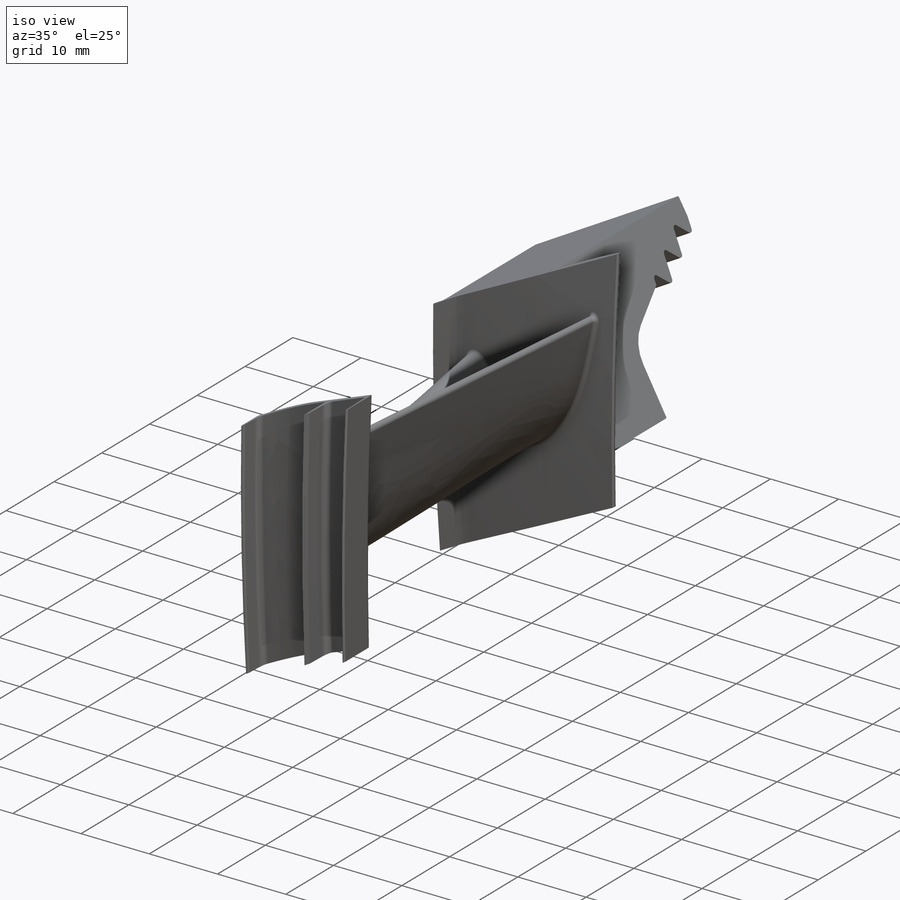
[diagram: iso view]
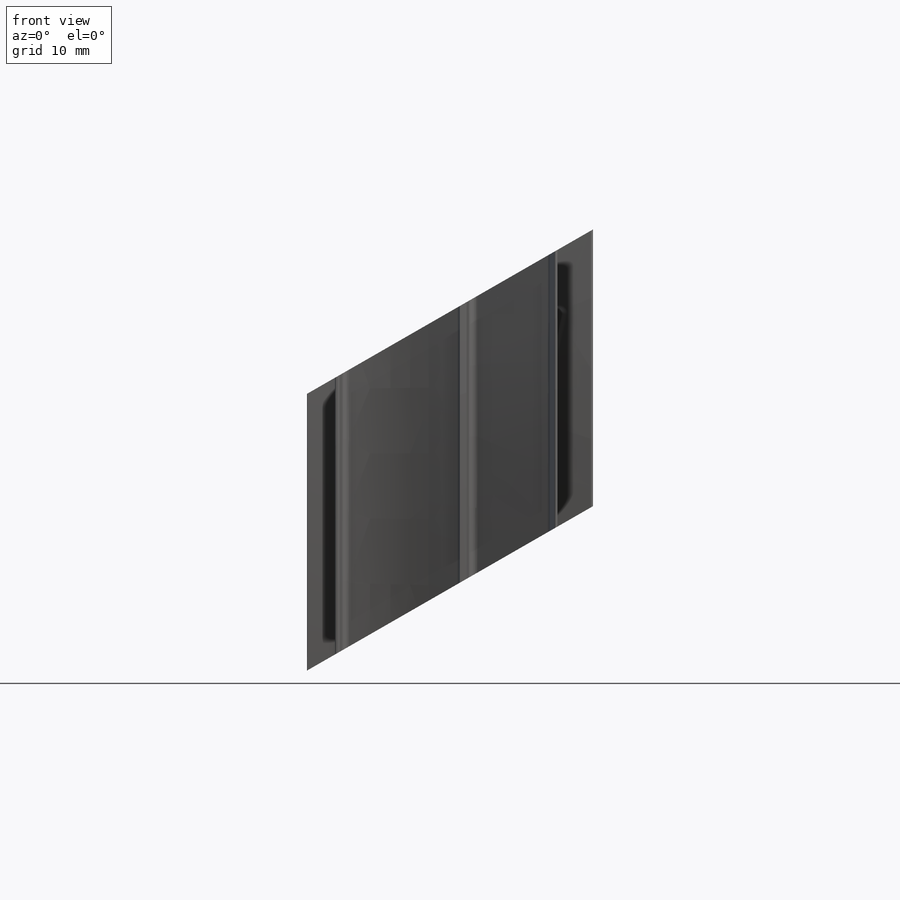
[diagram: front view]
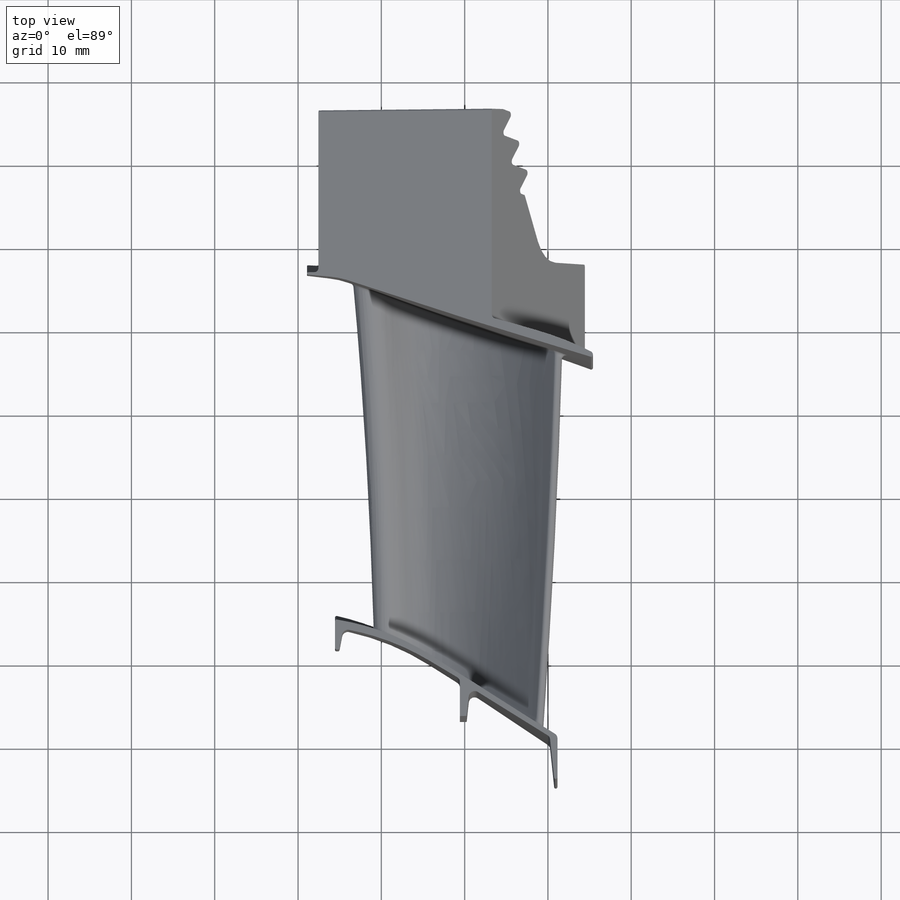
[diagram: top view]
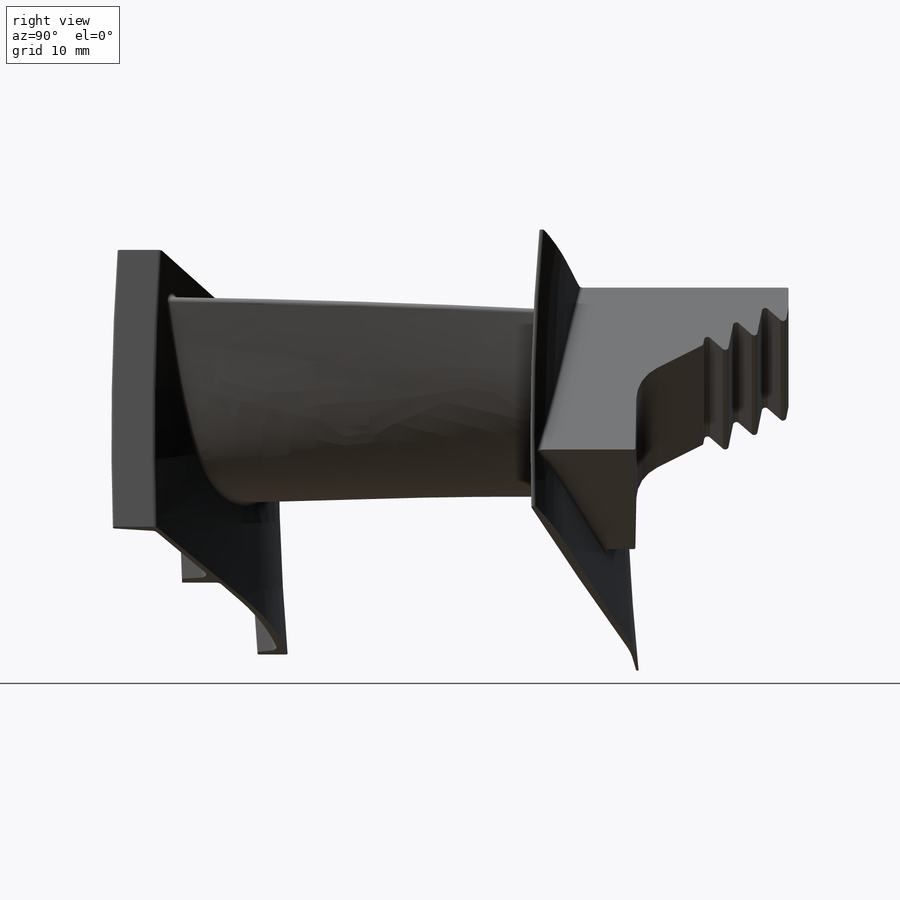
[diagram: right view]
SOLIDWORKS PART (.sldprt)
format: sldprt  version: not decoded by parser v0  size: 1,121,792 bytes
history: native  units: mm
features: sketch x10, plane x6, fillet x3, revolve x2, cut_revolve x2, cut_extrude x2, material x1, extrude x1, boolean_combine x1 (+8 scaffold rows collapsed)
feature tree (36):
  scaffold x8  (default folders/planes/origin — collapsed)
  material  "Материал <не указан>"
  plane  "Спереди"
  plane  "Сверху"
  plane  "Справа"
  sketch  "Эскиз1"  dims[c1.D4=4.0mm c1.D5=1.0mm c1.D9=5.958mm c1.D10=4.979mm c1.D2=0.5mm c2.D5=1.0mm c2.D12=0.6mm c2.D13=0.6mm c2.D14=0.6mm c2.D15=0.6mm c2.D16=0.6mm c2.D17=0.6mm c2.D18=0.6mm c2.D19=0.6mm c3.D12=0.3mm c3.D13=0.3mm c3.D15=0.3mm c3.D19=0.3mm c3.D18=0.3mm c3.D17=0.3mm c3.D16=0.3mm c3.D5=2.0mm c3.D10=2.0mm c3.D1=~748.958602mm c4.D1=50.68deg c4.D2=~536.164068mm c5.D2=95.68deg c5.D3=45.0deg c6.D2=90.0deg c6.D5=~594.561613mm c6.D6=~536.164068mm c7.D6=57.0deg c7.D7=~10.049976mm c8.D7=~62.22559deg c8.D8=2.0mm c9.D7=20.73deg c9.D9=~8.323326mm c10.D7=~251.120889mm c11.D7=20.73deg c11.D6=~20.63521mm c12.D6=57.0deg c13.D6=~15.33439mm c14.D6=57.0deg c15.D6=~27.300526mm c16.D6=57.0deg c16.D10=20.73mm c16.D3=29.79mm c16.D7=~254.277408mm c17.D7=20.73deg c17.D1=29.79mm c18.D1=50.68deg c18.D2=~7.135168mm c18.D10=~1.144238mm c18.D5=1.0mm c19.D10=1.0mm c19.D11=1.0mm c20.D10=1.0mm c20.D20=~1.030545mm c20.D21=1.3mm c20.D22=~98.278933deg c21.D20=~1.147902mm c21.D5=~1.692112mm c21.D10=2.0mm c22.D5=~2.65982mm c22.D10=~3.043009mm c22.D3=20.73mm c22.D8=~8.323326mm c23.D10=2.0mm c23.D11=2.0mm c24.D10=2.0mm c24.D11=2.0mm c24.D5=1.0mm]
  plane  "Плоскость3"  Offset=26mm
  sketch  "Эскиз4"  dims[c1.D2=4.3mm c1.D4=6.55mm c1.D10=0.2mm c1.D9=0.2mm c2.D10=2.15mm c2.D13=0.2mm c2.D14=0.2mm c2.D15=0.6mm c3.D13=0.6mm c3.D14=0.6mm c3.D16=0.6mm c3.D17=0.6mm c3.D18=0.6mm c3.D19=0.6mm c3.D20=0.3mm c3.D15=0.3mm c4.D17=0.3mm c4.D19=0.3mm c4.D21=1.22mm c4.D9=2.15mm c4.D10=2.15mm c4.D1=90.0deg c4.D3=46.0deg c4.D5=21.97deg c4.D6=8.24mm c4.D7=29.79mm c4.D8=60.11deg c5.D10=1.0mm c5.D11=1.0mm c5.D12=~18.304228mm c6.D12=~1.205761deg c7.D12=~18.304228mm c8.D12=~1.205761deg c9.D12=~18.304228mm c10.D12=~1.205761deg c11.D12=1.0mm c11.D16=~0.437664mm c11.D9=~1.893544mm c11.D10=2.15mm c12.D9=~2.712414mm c12.D10=~3.384353mm c13.D9=1.0mm]
  plane  "Плоскость4"  Offset=55mm
  sketch  "Эскиз5"  dims[c1.D2=3.7mm c1.D3=1.0mm c1.D5=5.3622mm c1.D10=0.4mm c1.D13=0.6mm c1.D14=0.6mm c1.D15=0.6mm c1.D16=0.6mm c1.D17=0.6mm c1.D18=0.6mm c1.D19=0.6mm c1.D20=0.6mm c2.D19=0.3mm c2.D20=0.3mm c2.D13=0.3mm c2.D14=0.3mm c2.D15=0.3mm c2.D16=0.3mm c2.D17=0.3mm c2.D18=0.3mm c2.D10=0.2mm c2.D21=0.85mm c3.D10=1.85mm c3.D11=1.85mm c3.D1=90.0deg c3.D4=70.0deg c3.D6=19.4deg c3.D7=8.45mm c3.D8=29.79mm c3.D9=42.84deg c4.D10=~1.734983mm c4.D11=1.85mm c5.D10=~1.773472mm c5.D11=~3.002892mm c6.D10=1.0mm c6.D11=1.0mm c6.D12=1.0mm]
  sketch  "Эскиз15"  dims[c1.D2=10.0mm c1.D3=40.5mm c1.D8=0.5mm c1.D11=0.2mm c1.D12=0.1mm c1.D7=30.1mm c2.D3=0.2mm c2.D7=0.2mm c2.D13=0.7mm c2.D14=0.7mm c3.D13=0.7mm c3.D15=0.7mm c3.D16=0.7mm c3.D17=0.2mm c3.D1=42.0mm c3.D2=39.0mm c3.D3=45.0mm c3.D4=~57.311413mm c4.D4=~15.395549deg c5.D4=~21.279559mm c6.D4=~15.501551deg c7.D4=~7.755486mm c8.D4=~20.269634deg c9.D4=~7.317984mm c10.D4=16.0deg c11.D4=284.0mm c11.D5=~247.610242mm c11.D6=297.0mm c12.D5=297.5mm c12.D6=312.5mm c12.D7=19.5mm c12.D9=22.5mm c12.D2=284.0mm c12.D3=297.5mm c12.D11=312.5mm c12.D12=39.0mm c12.D13=45.0mm c12.D14=90.0mm c12.D15=42.0mm c12.D16=297.5mm c13.D15=19.5mm c13.D2=39.0mm c14.D15=~51.878599mm c14.D16=~33.591434mm c14.D8=39.0mm c14.D10=45.0mm]
  revolve  "Повернуть1"  Angle=15deg
  sketch  "Эскиз16"
  revolve  "Повернуть2"  Angle=10deg
  sketch  "Эскиз22"
  cut_revolve  "Вырез-Повернуть1"  Angle=360deg
  sketch  "Эскиз23"
  cut_revolve  "Вырез-Повернуть2"  Angle=360deg
  plane  "Плоскость5"
  sketch  "Эскиз24"  dims[D5=0.2mm D6=5.0mm D7=0.2mm D8=0.5mm D9=0.2mm D10=0.2mm D1=30.0deg D2=105.0deg D3=55.0deg D4=2.0mm]
  extrude  "Бобышка-Вытянуть1"  Depth=24mm
  sketch  "Эскиз27"  dims[D1=0.0mm]
  cut_extrude  "Вырез-Вытянуть1"  Depth=20mm
  sketch  "Эскиз28"
  cut_extrude  "Вырез-Вытянуть3"  Depth=80mm
  boolean_combine  "Соединить1"
  fillet  "Скругление1"  Radius=0.5mm
  fillet  "Скругление2"  Radius=0.5mm
  fillet  "Скругление3"  Radius=0.5mm
decode coverage: 16 of 21 modeling features carry decoded parameters
note: ~ marks probable driven/reference dimensions
note: suppression state not decoded; provenance and decode notes live in map.json
